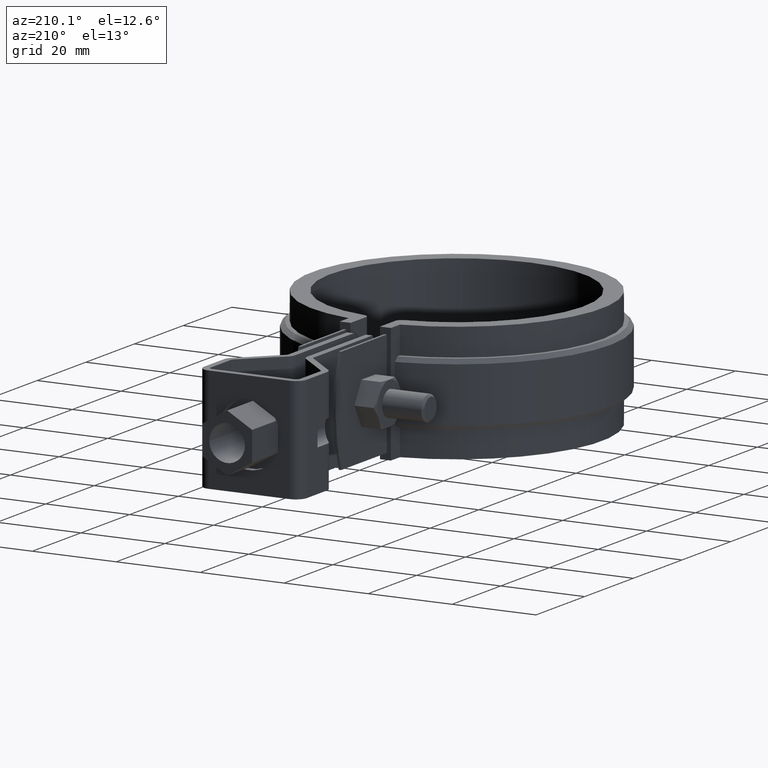
[diagram: clean part render]
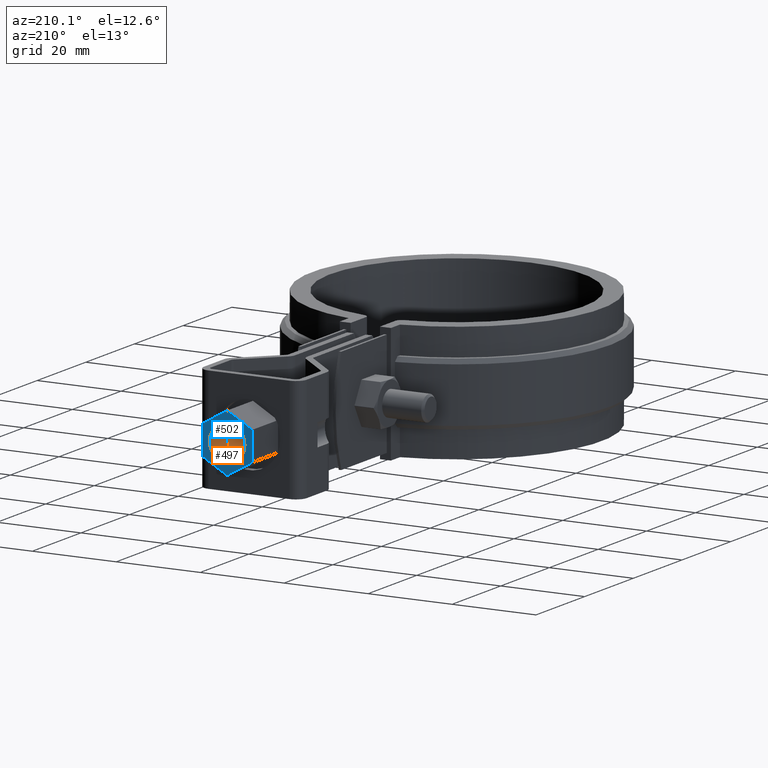
[diagram: same view with the hole feature highlighted: cylindrical wall and planar end face, labeled with their STEP entity ids]
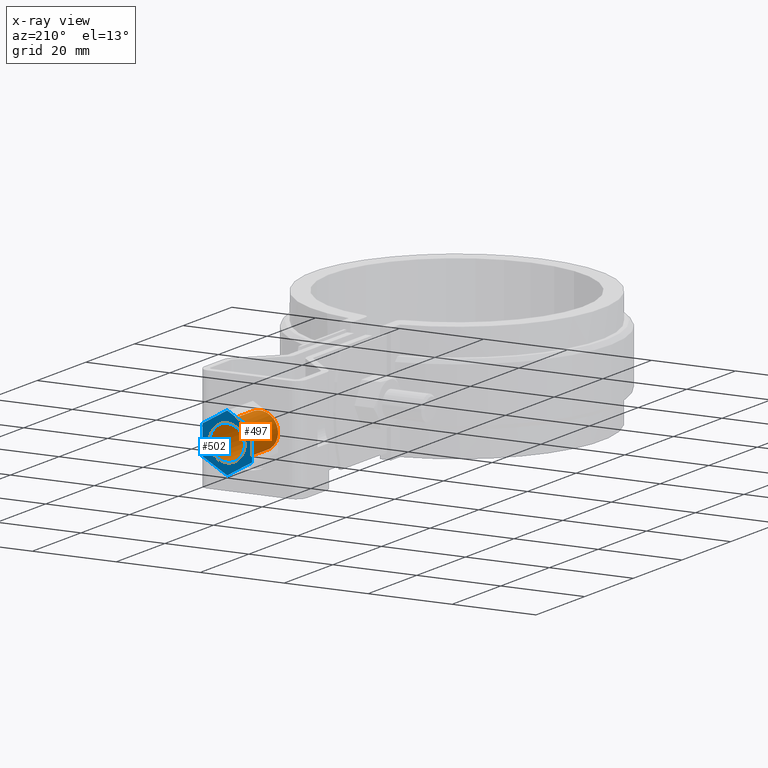
[diagram: x-ray of the same camera — body ghosted, the hole faces saturated]
A machine part, auxiliary view. The highlighted faces form one hole feature of diameter 8.5 mm: the cylindrical wall (entity #497, orange) and its adjacent planar end face (entity #502, blue) — they share a circular edge in the B-rep.
The next image is the same camera in x-ray (body ghosted, the hole faces saturated) — the bore reads through the body.
Wall:
#497 = ADVANCED_FACE( '', ( #928, #929 ), #930, .F. );
#928 = FACE_OUTER_BOUND( '', #1931, .T. );
#929 = FACE_OUTER_BOUND( '', #1932, .T. );
#930 = CYLINDRICAL_SURFACE( '', #1933, 4.25000000000000 );
#1931 = EDGE_LOOP( '', ( #4464 ) );
#1932 = EDGE_LOOP( '', ( #4465 ) );
#1933 = AXIS2_PLACEMENT_3D( '', #4466, #4467, #4468 );
#4464 = ORIENTED_EDGE( '', *, *, #5276, .F. );
#4465 = ORIENTED_EDGE( '', *, *, #5274, .F. );
#4466 = CARTESIAN_POINT( '', ( -4.85756630937764E-011, 76.5515111814454, -12.5000000083937 ) );
#4467 = DIRECTION( '', ( 8.95987727456561E-014, -1.00000000000000, 6.36784791563427E-011 ) );
#4468 = DIRECTION( '', ( 1.00000000000000, 8.95987727205977E-014, -3.93514245410506E-013 ) );
#5274 = EDGE_CURVE( '', #6217, #6217, #6218, .T. );
#5276 = EDGE_CURVE( '', #6221, #6221, #6222, .T. );
#6217 = VERTEX_POINT( '', #9456 );
#6218 = CIRCLE( '', #9457, 4.25000000000000 );
#6221 = VERTEX_POINT( '', #9460 );
#6222 = CIRCLE( '', #9461, 4.25000000000000 );
#9456 = CARTESIAN_POINT( '', ( 4.24999999995104, 80.8015111814778, -12.5000000086660 ) );
#9457 = AXIS2_PLACEMENT_3D( '', #10389, #10390, #10391 );
#9460 = CARTESIAN_POINT( '', ( 4.24999999994983, 94.4015111814779, -12.5000000095320 ) );
#9461 = AXIS2_PLACEMENT_3D( '', #10395, #10396, #10397 );
#10389 = CARTESIAN_POINT( '', ( -4.89564578779483E-011, 80.8015111814775, -12.5000000086643 ) );
#10390 = DIRECTION( '', ( -8.95987727456561E-014, 1.00000000000000, -6.36784791563427E-011 ) );
#10391 = DIRECTION( '', ( 1.00000000000000, 8.95987727205765E-014, -3.93847312317893E-013 ) );
#10395 = CARTESIAN_POINT( '', ( -5.01750011872892E-011, 94.4015111814775, -12.5000000095303 ) );
#10396 = DIRECTION( '', ( 8.95987727456561E-014, -1.00000000000000, 6.36784791563427E-011 ) );
#10397 = DIRECTION( '', ( 1.00000000000000, 8.95987727205977E-014, -3.93514245410506E-013 ) );
End face:
#502 = ADVANCED_FACE( '', ( #940, #941 ), #942, .T. );
#940 = FACE_BOUND( '', #1943, .T. );
#941 = FACE_OUTER_BOUND( '', #1944, .T. );
#942 = PLANE( '', #1945 );
#1943 = EDGE_LOOP( '', ( #4495 ) );
#1944 = EDGE_LOOP( '', ( #4496, #4497, #4498, #4499, #4500, #4501 ) );
#1945 = AXIS2_PLACEMENT_3D( '', #4502, #4503, #4504 );
#4495 = ORIENTED_EDGE( '', *, *, #5276, .T. );
#4496 = ORIENTED_EDGE( '', *, *, #5262, .T. );
#4497 = ORIENTED_EDGE( '', *, *, #5271, .T. );
#4498 = ORIENTED_EDGE( '', *, *, #5273, .T. );
#4499 = ORIENTED_EDGE( '', *, *, #5278, .T. );
#4500 = ORIENTED_EDGE( '', *, *, #5280, .T. );
#4501 = ORIENTED_EDGE( '', *, *, #5281, .T. );
#4502 = CARTESIAN_POINT( '', ( 5.94999999994848, 94.4015111812593, -15.9352341112109 ) );
#4503 = DIRECTION( '', ( -8.95987727456551E-014, 1.00000000000000, -6.36784791563427E-011 ) );
#4504 = DIRECTION( '', ( 0.499999999999659, -5.51023812373904E-011, -0.866025403784636 ) );
#5262 = EDGE_CURVE( '', #6197, #6195, #6198, .T. );
#5271 = EDGE_CURVE( '', #6195, #6211, #6213, .T. );
#5273 = EDGE_CURVE( '', #6211, #6214, #6216, .T. );
#5276 = EDGE_CURVE( '', #6221, #6221, #6222, .T. );
#5278 = EDGE_CURVE( '', #6214, #6223, #6225, .T. );
#5280 = EDGE_CURVE( '', #6223, #6226, #6228, .T. );
#5281 = EDGE_CURVE( '', #6226, #6197, #6229, .T. );
#6195 = VERTEX_POINT( '', #9422 );
#6197 = VERTEX_POINT( '', #9425 );
#6198 = LINE( '', #9426, #9427 );
#6211 = VERTEX_POINT( '', #9446 );
#6213 = LINE( '', #9449, #9450 );
#6214 = VERTEX_POINT( '', #9451 );
#6216 = LINE( '', #9454, #9455 );
#6221 = VERTEX_POINT( '', #9460 );
#6222 = CIRCLE( '', #9461, 4.25000000000000 );
#6223 = VERTEX_POINT( '', #9462 );
#6225 = LINE( '', #9465, #9466 );
#6226 = VERTEX_POINT( '', #9467 );
#6228 = LINE( '', #9470, #9471 );
#6229 = LINE( '', #9472, #9473 );
#9422 = CARTESIAN_POINT( '', ( 5.94999999994848, 94.4015111812593, -15.9352341112109 ) );
#9425 = CARTESIAN_POINT( '', ( 5.94999999995118, 94.4015111816968, -9.06476590785436 ) );
#9426 = CARTESIAN_POINT( '', ( 5.94999999995118, 94.4015111816968, -9.06476590785436 ) );
#9427 = VECTOR( '', #10375, 1000.00000000000 );
#9446 = CARTESIAN_POINT( '', ( -5.28778808574246E-011, 94.4015111810400, -19.3704682128869 ) );
#9449 = CARTESIAN_POINT( '', ( 5.94999999994848, 94.4015111812593, -15.9352341112109 ) );
#9450 = VECTOR( '', #10386, 1000.00000000000 );
#9451 = CARTESIAN_POINT( '', ( -5.95000000005152, 94.4015111812582, -15.9352341112062 ) );
#9454 = CARTESIAN_POINT( '', ( -5.28761461339486E-011, 94.4015111810400, -19.3704682128869 ) );
#9455 = VECTOR( '', #10388, 1000.00000000000 );
#9460 = CARTESIAN_POINT( '', ( 4.24999999994983, 94.4015111814779, -12.5000000095320 ) );
#9461 = AXIS2_PLACEMENT_3D( '', #10395, #10396, #10397 );
#9462 = CARTESIAN_POINT( '', ( -5.95000000004882, 94.4015111816957, -9.06476590784970 ) );
#9465 = CARTESIAN_POINT( '', ( -5.95000000005153, 94.4015111812582, -15.9352341112062 ) );
#9466 = VECTOR( '', #10399, 1000.00000000000 );
#9467 = CARTESIAN_POINT( '', ( -4.74729888788919E-011, 94.4015111819150, -5.62953180617376 ) );
#9470 = CARTESIAN_POINT( '', ( -5.95000000004883, 94.4015111816957, -9.06476590784969 ) );
#9471 = VECTOR( '', #10401, 1000.00000000000 );
#9472 = CARTESIAN_POINT( '', ( -4.74669173467260E-011, 94.4015111819150, -5.62953180617376 ) );
#9473 = VECTOR( '', #10402, 1000.00000000000 );
#10375 = DIRECTION( '', ( -3.93458734253569E-013, -6.36784791563427E-011, -1.00000000000000 ) );
#10386 = DIRECTION( '', ( -0.866025403784636, -3.19168343914953E-011, -0.499999999999659 ) );
#10388 = DIRECTION( '', ( -0.866025403784242, 3.17616447648474E-011, 0.500000000000341 ) );
#10395 = CARTESIAN_POINT( '', ( -5.01750011872892E-011, 94.4015111814775, -12.5000000095303 ) );
#10396 = DIRECTION( '', ( 8.95987727456561E-014, -1.00000000000000, 6.36784791563427E-011 ) );
#10397 = DIRECTION( '', ( 1.00000000000000, 8.95987727205977E-014, -3.93514245410506E-013 ) );
#10399 = DIRECTION( '', ( 3.93902823463419E-013, 6.36784791563427E-011, 1.00000000000000 ) );
#10401 = DIRECTION( '', ( 0.866025403784636, 3.19168343914953E-011, 0.499999999999659 ) );
#10402 = DIRECTION( '', ( 0.866025403784242, -3.17616447648474E-011, -0.500000000000341 ) );